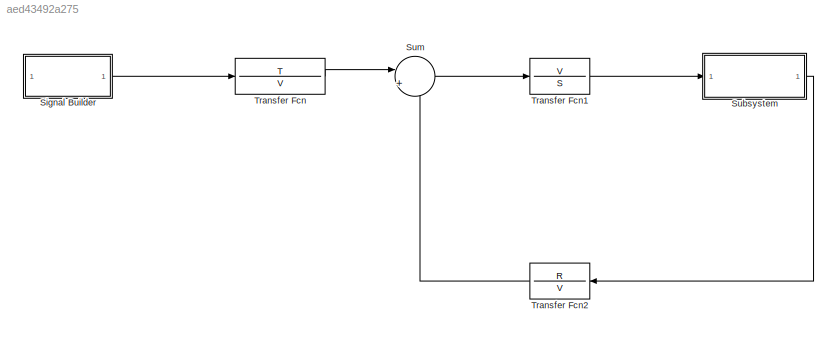
MODEL slx_aed43492a275
KIND model
CONFIG AbsTol = auto
CONFIG EnableMultiTasking = on
CONFIG FixedStep = auto
CONFIG MaxStep = auto
CONFIG MinStep = auto
CONFIG RelTol = 1e-3
CONFIG SampleTimeConstraint = Unconstrained
CONFIG SolverName = ode45
CONFIG StartTime = 0.0
CONFIG StopTime = 10.0
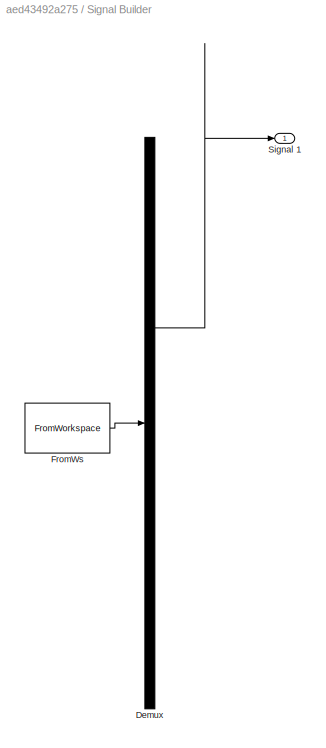
BLOCK [SubSystem] Signal Builder
  ClipboardFcn = sigbuilder_block('clipboard');
  CloseFcn = sigbuilder_block('close');
  ContinueFcn = sigbuilder_block('continue');
  CopyFcn = sigbuilder_block('copy');
  DeleteFcn = sigbuilder_block('delete');
  LoadFcn = sigbuilder_block('load');
  MaskHideContents = on
  ModelCloseFcn = sigbuilder_block('modelClose');
  NameChangeFcn = sigbuilder_block('namechange');
  OpenFcn = sigbuilder_block('open',[-284.25 -135 1428 717.75 ]);
  PauseFcn = sigbuilder_block('pause');
  PreSaveFcn = sigbuilder_block('preSave');
  StartFcn = sigbuilder_block('start');
  StopFcn = sigbuilder_block('stop');
  Tag = STV Subsys
BLOCK [Demux] Signal Builder/Demux
  DisplayOption = none
  Outputs = 1
  Tag = STV Demux
BLOCK [FromWorkspace] Signal Builder/FromWs
  Tag = STV FromWs
  VariableName = tuvar
BLOCK [Outport] Signal Builder/Signal 1
  Tag = STV Outport
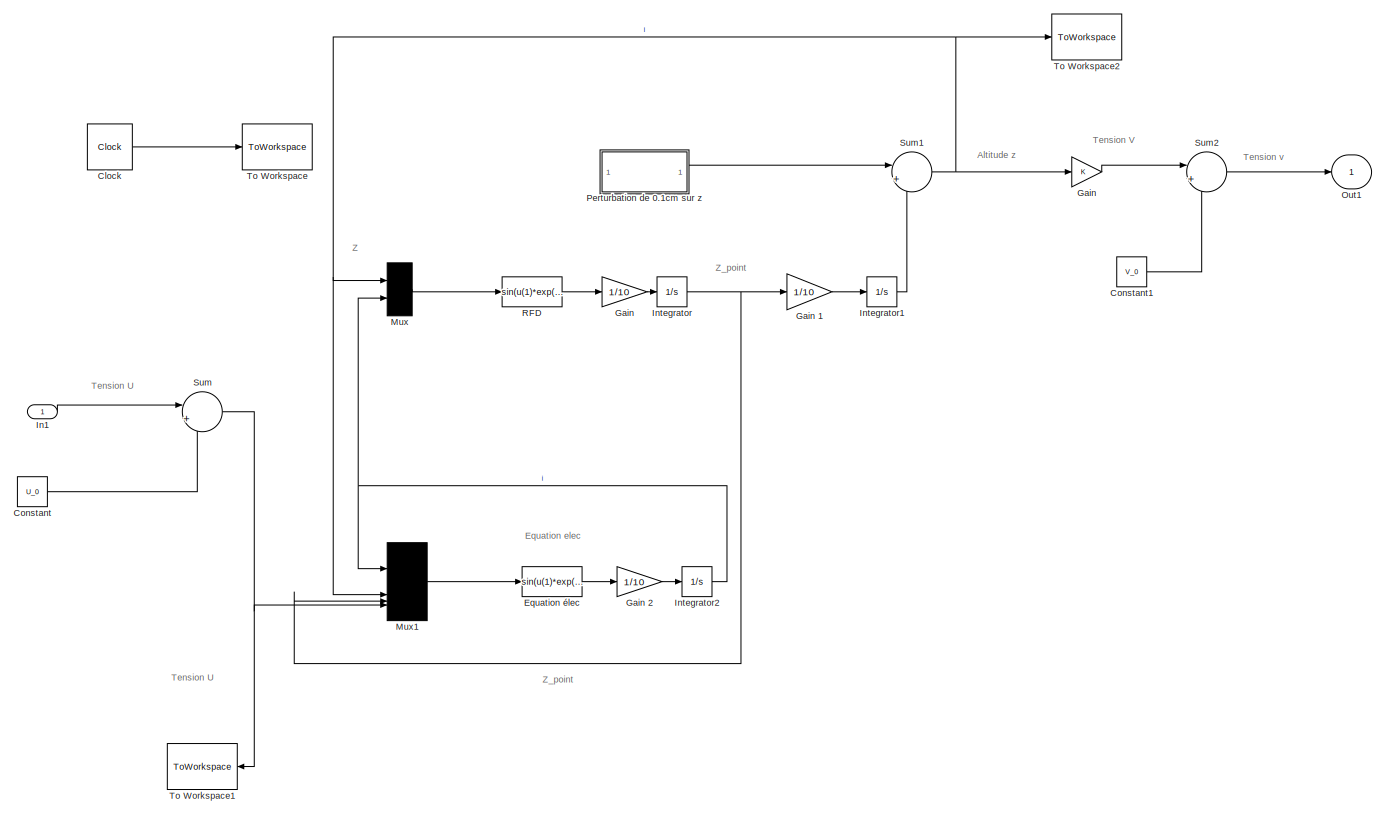
[diagram: Subsystem - part 1/1, most of the canvas]
BLOCK [SubSystem] Subsystem
BLOCK [Clock] Subsystem/Clock
BLOCK [Constant] Subsystem/Constant
  Value = U_0
BLOCK [Constant] Subsystem/Constant1
  Value = V_0
BLOCK [Fcn] Subsystem/Equation élec
  Expr = sin(u(1)*exp(2.3*(-u(2))))
BLOCK [Gain] Subsystem/Gain
BLOCK [Gain] Subsystem/Gain 
  Gain = 1/10
BLOCK [Gain] Subsystem/Gain 1 
  Gain = 1/10
BLOCK [Gain] Subsystem/Gain 2 
  Gain = 1/10
BLOCK [Inport] Subsystem/In1
BLOCK [Integrator] Subsystem/Integrator
BLOCK [Integrator] Subsystem/Integrator1
BLOCK [Integrator] Subsystem/Integrator2
BLOCK [Mux] Subsystem/Mux
  DisplayOption = bar
  Inputs = 2
BLOCK [Mux] Subsystem/Mux1
  DisplayOption = bar
BLOCK [Outport] Subsystem/Out1
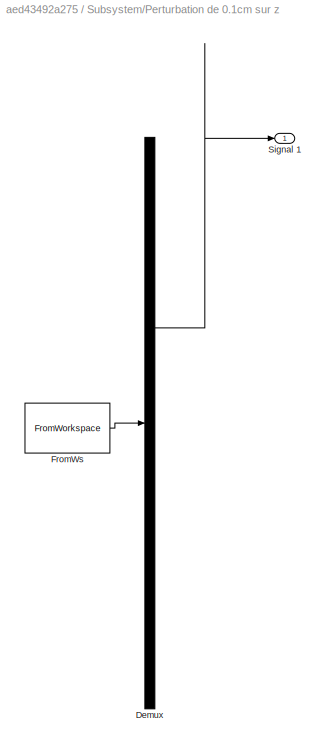
BLOCK [SubSystem] Subsystem/Perturbation de 0.1cm sur z
  ClipboardFcn = sigbuilder_block('clipboard');
  CloseFcn = sigbuilder_block('close');
  ContinueFcn = sigbuilder_block('continue');
  CopyFcn = sigbuilder_block('copy');
  DeleteFcn = sigbuilder_block('delete');
  LoadFcn = sigbuilder_block('load');
  MaskHideContents = on
  ModelCloseFcn = sigbuilder_block('modelClose');
  NameChangeFcn = sigbuilder_block('namechange');
  OpenFcn = sigbuilder_block('open',[236 5.5 718.5 474.5 ]);
  PauseFcn = sigbuilder_block('pause');
  PreSaveFcn = sigbuilder_block('preSave');
  StartFcn = sigbuilder_block('start');
  StopFcn = sigbuilder_block('stop');
  Tag = STV Subsys
BLOCK [Demux] Subsystem/Perturbation de 0.1cm sur z/Demux
  DisplayOption = none
  Outputs = 1
  Tag = STV Demux
BLOCK [FromWorkspace] Subsystem/Perturbation de 0.1cm sur z/FromWs
  Tag = STV FromWs
  VariableName = tuvar
BLOCK [Outport] Subsystem/Perturbation de 0.1cm sur z/Signal 1
  Tag = STV Outport
BLOCK [Fcn] Subsystem/RFD
  Expr = sin(u(1)*exp(2.3*(-u(2))))
BLOCK [Sum] Subsystem/Sum
  Inputs = |++
BLOCK [Sum] Subsystem/Sum1
  Inputs = |++
BLOCK [Sum] Subsystem/Sum2
  Inputs = |+-
BLOCK [ToWorkspace] Subsystem/To Workspace
  MaxDataPoints = inf
  SampleTime = -1
  VariableName = t
BLOCK [ToWorkspace] Subsystem/To Workspace1
  MaxDataPoints = inf
  SampleTime = -1
  VariableName = U
BLOCK [ToWorkspace] Subsystem/To Workspace2
  MaxDataPoints = inf
  SampleTime = -1
  VariableName = Z
BLOCK [Sum] Sum
  Inputs = |+-
BLOCK [TransferFcn] Transfer Fcn
  Denominator = V
  Numerator = T
BLOCK [TransferFcn] Transfer Fcn1
  Denominator = S
  Numerator = V
BLOCK [TransferFcn] Transfer Fcn2
  Denominator = V
  Numerator = R
ANNOTATION Subsystem: Altitude z
ANNOTATION Subsystem: Equation elec
ANNOTATION Subsystem: Tension U
ANNOTATION Subsystem: Tension V
ANNOTATION Subsystem: Tension v
ANNOTATION Subsystem: Z
ANNOTATION Subsystem: Z_point
LINE Signal Builder:1 -> Transfer Fcn:1
LINE Subsystem/Clock:1 -> Subsystem/To Workspace:1
LINE Subsystem/Constant1:1 -> Subsystem/Sum2:2
LINE Subsystem/Constant:1 -> Subsystem/Sum:2
LINE Subsystem/Equation élec:1 -> Subsystem/Gain 2 :1
LINE Subsystem/Gain 1 :1 -> Subsystem/Integrator1:1
LINE Subsystem/Gain 2 :1 -> Subsystem/Integrator2:1
LINE Subsystem/Gain :1 -> Subsystem/Integrator:1
LINE Subsystem/Gain:1 -> Subsystem/Sum2:1
LINE Subsystem/In1:1 -> Subsystem/Sum:1
LINE Subsystem/Integrator1:1 -> Subsystem/Sum1:2
NET Subsystem/Integrator2:1 -> Subsystem/Mux1:1, Subsystem/Mux:2
NET Subsystem/Integrator:1 -> Subsystem/Gain 1 :1, Subsystem/Mux1:3
LINE Subsystem/Mux1:1 -> Subsystem/Equation élec:1
LINE Subsystem/Mux:1 -> Subsystem/RFD:1
LINE Subsystem/Perturbation de 0.1cm sur z:1 -> Subsystem/Sum1:1
LINE Subsystem/RFD:1 -> Subsystem/Gain :1
NET Subsystem/Sum1:1 -> Subsystem/Gain:1, Subsystem/Mux1:2, Subsystem/Mux:1, Subsystem/To Workspace2:1
LINE Subsystem/Sum2:1 -> Subsystem/Out1:1
NET Subsystem/Sum:1 -> Subsystem/Mux1:4, Subsystem/To Workspace1:1
LINE Subsystem:1 -> Transfer Fcn2:1
LINE Sum:1 -> Transfer Fcn1:1
LINE Transfer Fcn1:1 -> Subsystem:1
LINE Transfer Fcn2:1 -> Sum:2
LINE Transfer Fcn:1 -> Sum:1
note: NET lines group one-source signal fan-out (src -> all destinations, sorted); 1:1 wires keep LINE
